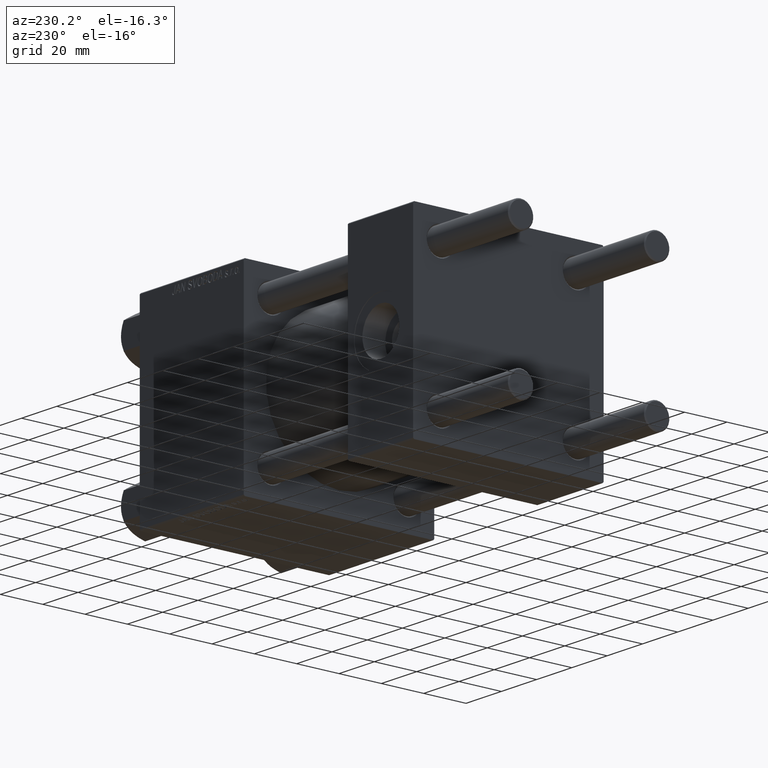
[diagram: clean part render]
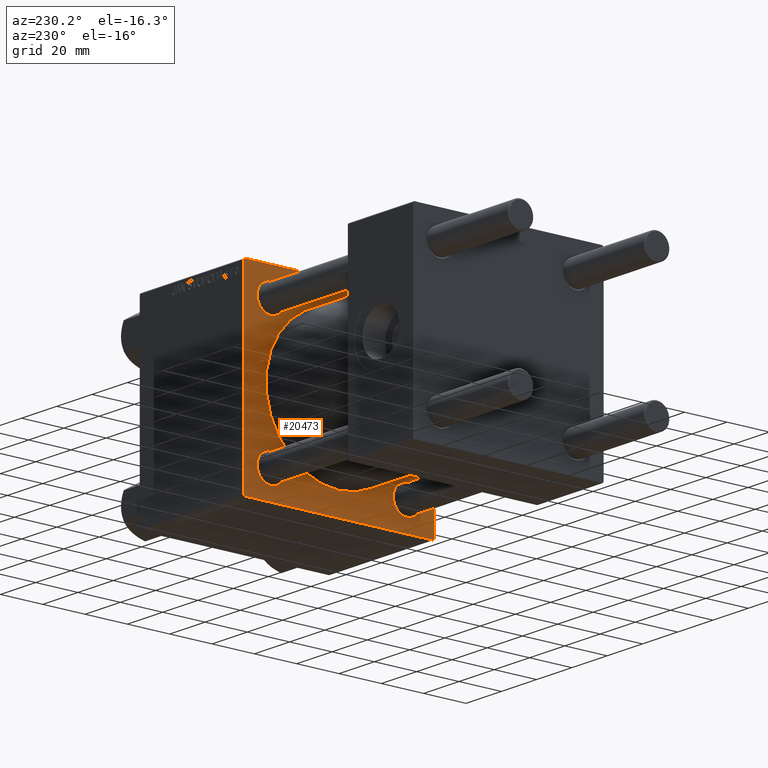
[diagram: same view with one face highlighted and labeled with its STEP entity id]
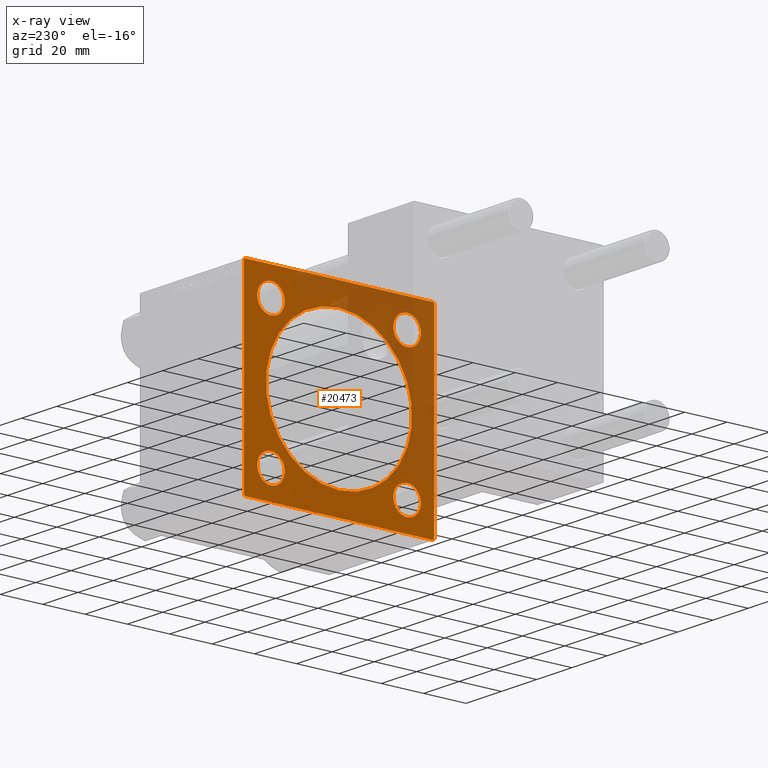
[diagram: x-ray of the same camera — body ghosted, the highlighted face saturated]
A machine part, auxiliary view. The second image highlights one B-rep face of the part: STEP entity #20473.
The next image is the same camera in x-ray: the body ghosted, the highlighted face saturated — about 38% of this face is hidden behind the body in this view.
In plain terms, the highlighted planar face has unit normal (-1, 0, 0).
Its self-contained STEP definition (entity closure, byte-faithful):
#757 = LINE ( 'NONE', #19904, #46773 ) ;
#901 = CARTESIAN_POINT ( 'NONE',  ( 96.00000000000000000, -44.74999999999997158, 44.74999999999997158 ) ) ;
#1636 = CARTESIAN_POINT ( 'NONE',  ( 96.00000000000000000, 0.000000000000000000, 0.000000000000000000 ) ) ;
#1986 = CIRCLE ( 'NONE', #2775, 6.500000000000033751 ) ;
#2065 = CARTESIAN_POINT ( 'NONE',  ( 96.00000000000000000, 32.14999999999999147, -32.15000000000000568 ) ) ;
#2303 = FACE_OUTER_BOUND ( 'NONE', #49475, .T. ) ;
#2775 = AXIS2_PLACEMENT_3D ( 'NONE', #45276, #18053, #6952 ) ;
#2990 = CARTESIAN_POINT ( 'NONE',  ( 96.00000000000000000, 0.000000000000000000, 34.49999999999999289 ) ) ;
#3129 = DIRECTION ( 'NONE',  ( 0.000000000000000000, 0.000000000000000000, 1.000000000000000000 ) ) ;
#3485 = CARTESIAN_POINT ( 'NONE',  ( 96.00000000000000000, 4.225031457058367344E-15, -34.49999999999999289 ) ) ;
#4097 = ORIENTED_EDGE ( 'NONE', *, *, #10526, .T. ) ;
#4705 = AXIS2_PLACEMENT_3D ( 'NONE', #2065, #17399, #13623 ) ;
#5627 = EDGE_CURVE ( 'NONE', #24999, #29662, #20093, .T. ) ;
#5808 = CARTESIAN_POINT ( 'NONE',  ( 96.00000000000000000, 44.75000000000000000, -44.75000000000000000 ) ) ;
#6432 = VECTOR ( 'NONE', #36189, 1000.000000000000114 ) ;
#6809 = EDGE_CURVE ( 'NONE', #30295, #20664, #8858, .T. ) ;
#6952 = DIRECTION ( 'NONE',  ( 0.000000000000000000, 0.000000000000000000, 1.000000000000000000 ) ) ;
#7526 = EDGE_CURVE ( 'NONE', #40867, #35842, #24506, .T. ) ;
#7564 = CARTESIAN_POINT ( 'NONE',  ( 96.00000000000000000, -44.49999999999994316, 44.99999999999998579 ) ) ;
#7716 = EDGE_CURVE ( 'NONE', #43352, #12743, #24226, .T. ) ;
#8032 = ORIENTED_EDGE ( 'NONE', *, *, #12027, .T. ) ;
#8149 = VERTEX_POINT ( 'NONE', #11503 ) ;
#8690 = LINE ( 'NONE', #901, #6432 ) ;
#8858 = CIRCLE ( 'NONE', #49093, 6.500000000000033751 ) ;
#8949 = VECTOR ( 'NONE', #26944, 1000.000000000000000 ) ;
#9583 = DIRECTION ( 'NONE',  ( -1.000000000000000000, 0.000000000000000000, -0.000000000000000000 ) ) ;
#10312 = DIRECTION ( 'NONE',  ( 0.000000000000000000, 0.000000000000000000, 1.000000000000000000 ) ) ;
#10315 = EDGE_CURVE ( 'NONE', #19948, #8149, #45210, .T. ) ;
#10479 = VERTEX_POINT ( 'NONE', #21256 ) ;
#10526 = EDGE_CURVE ( 'NONE', #17356, #46017, #38815, .T. ) ;
#11002 = ORIENTED_EDGE ( 'NONE', *, *, #38592, .T. ) ;
#11503 = CARTESIAN_POINT ( 'NONE',  ( 96.00000000000000000, 32.14999999999999147, 38.65000000000004121 ) ) ;
#11762 = DIRECTION ( 'NONE',  ( 0.000000000000000000, 0.7071067811865474617, -0.7071067811865474617 ) ) ;
#12027 = EDGE_CURVE ( 'NONE', #10479, #40867, #43621, .T. ) ;
#12107 = ORIENTED_EDGE ( 'NONE', *, *, #7716, .T. ) ;
#12238 = CARTESIAN_POINT ( 'NONE',  ( 96.00000000000000000, -45.00000000000000000, 44.49999999999995737 ) ) ;
#12743 = VERTEX_POINT ( 'NONE', #31924 ) ;
#12885 = EDGE_LOOP ( 'NONE', ( #4097, #11002 ) ) ;
#12907 = ORIENTED_EDGE ( 'NONE', *, *, #20309, .T. ) ;
#13090 = ORIENTED_EDGE ( 'NONE', *, *, #34263, .T. ) ;
#13379 = CARTESIAN_POINT ( 'NONE',  ( 96.00000000000000000, 0.000000000000000000, 0.000000000000000000 ) ) ;
#13492 = EDGE_CURVE ( 'NONE', #44191, #10479, #14547, .T. ) ;
#13623 = DIRECTION ( 'NONE',  ( 0.000000000000000000, 0.000000000000000000, 1.000000000000000000 ) ) ;
#13873 = FACE_BOUND ( 'NONE', #36270, .T. ) ;
#13894 = EDGE_LOOP ( 'NONE', ( #14090, #19247 ) ) ;
#14090 = ORIENTED_EDGE ( 'NONE', *, *, #5627, .T. ) ;
#14381 = CIRCLE ( 'NONE', #4705, 6.500000000000033751 ) ;
#14547 = LINE ( 'NONE', #26165, #41294 ) ;
#14719 = DIRECTION ( 'NONE',  ( 1.000000000000000000, 0.000000000000000000, 0.000000000000000000 ) ) ;
#16146 = CARTESIAN_POINT ( 'NONE',  ( 96.00000000000000000, 32.14999999999999147, 32.15000000000000568 ) ) ;
#16261 = DIRECTION ( 'NONE',  ( 0.000000000000000000, 0.000000000000000000, -1.000000000000000000 ) ) ;
#16403 = CIRCLE ( 'NONE', #22101, 6.500000000000033751 ) ;
#16871 = AXIS2_PLACEMENT_3D ( 'NONE', #1636, #23851, #24095 ) ;
#17316 = ORIENTED_EDGE ( 'NONE', *, *, #41423, .F. ) ;
#17356 = VERTEX_POINT ( 'NONE', #49427 ) ;
#17395 = FACE_BOUND ( 'NONE', #37248, .T. ) ;
#17399 = DIRECTION ( 'NONE',  ( 1.000000000000000000, 0.000000000000000000, 0.000000000000000000 ) ) ;
#17887 = VECTOR ( 'NONE', #24249, 1000.000000000000114 ) ;
#18053 = DIRECTION ( 'NONE',  ( 1.000000000000000000, 0.000000000000000000, 0.000000000000000000 ) ) ;
#18218 = ORIENTED_EDGE ( 'NONE', *, *, #35218, .T. ) ;
#19129 = DIRECTION ( 'NONE',  ( 1.000000000000000000, 0.000000000000000000, 0.000000000000000000 ) ) ;
#19247 = ORIENTED_EDGE ( 'NONE', *, *, #43513, .T. ) ;
#19904 = CARTESIAN_POINT ( 'NONE',  ( 96.00000000000000000, -44.74999999999965183, -44.75000000000027001 ) ) ;
#19948 = VERTEX_POINT ( 'NONE', #24133 ) ;
#20093 = CIRCLE ( 'NONE', #16871, 34.49999999999999289 ) ;
#20309 = EDGE_CURVE ( 'NONE', #8149, #19948, #16403, .T. ) ;
#20473 = ADVANCED_FACE ( 'NONE', ( #47890, #13873, #17395, #21971, #21474, #2303 ), #37353, .T. ) ;
#20664 = VERTEX_POINT ( 'NONE', #47327 ) ;
#21256 = CARTESIAN_POINT ( 'NONE',  ( 96.00000000000000000, 45.00000000000001421, -44.49999999999997158 ) ) ;
#21474 = FACE_BOUND ( 'NONE', #13894, .T. ) ;
#21971 = FACE_BOUND ( 'NONE', #12885, .T. ) ;
#22024 = ORIENTED_EDGE ( 'NONE', *, *, #30672, .F. ) ;
#22101 = AXIS2_PLACEMENT_3D ( 'NONE', #16146, #36094, #38452 ) ;
#22316 = CARTESIAN_POINT ( 'NONE',  ( 96.00000000000000000, 32.14999999999999147, 32.15000000000000568 ) ) ;
#22448 = DIRECTION ( 'NONE',  ( 0.000000000000000000, 0.000000000000000000, 1.000000000000000000 ) ) ;
#22474 = CARTESIAN_POINT ( 'NONE',  ( 96.00000000000000000, 44.50000000000001421, -45.00000000000000000 ) ) ;
#23637 = EDGE_CURVE ( 'NONE', #12743, #43352, #14381, .T. ) ;
#23851 = DIRECTION ( 'NONE',  ( 1.000000000000000000, 0.000000000000000000, 0.000000000000000000 ) ) ;
#24095 = DIRECTION ( 'NONE',  ( 0.000000000000000000, 0.000000000000000000, -1.000000000000000000 ) ) ;
#24133 = CARTESIAN_POINT ( 'NONE',  ( 96.00000000000000000, 32.14999999999999147, 25.64999999999997016 ) ) ;
#24226 = CIRCLE ( 'NONE', #32257, 6.500000000000033751 ) ;
#24249 = DIRECTION ( 'NONE',  ( -0.000000000000000000, -0.7071067811865474617, -0.7071067811865474617 ) ) ;
#24506 = LINE ( 'NONE', #39863, #34668 ) ;
#24993 = DIRECTION ( 'NONE',  ( -0.000000000000000000, 0.000000000000000000, 1.000000000000000000 ) ) ;
#24999 = VERTEX_POINT ( 'NONE', #2990 ) ;
#25974 = CARTESIAN_POINT ( 'NONE',  ( 96.00000000000000000, -32.14999999999997726, -32.15000000000001279 ) ) ;
#26165 = CARTESIAN_POINT ( 'NONE',  ( 96.00000000000000000, 45.00000000000001421, 45.00000000000000000 ) ) ;
#26418 = CARTESIAN_POINT ( 'NONE',  ( 96.00000000000000000, 44.74999999999998579, 44.74999999999998579 ) ) ;
#26511 = VERTEX_POINT ( 'NONE', #49266 ) ;
#26678 = EDGE_CURVE ( 'NONE', #44295, #41017, #8690, .T. ) ;
#26719 = CARTESIAN_POINT ( 'NONE',  ( 96.00000000000000000, 32.14999999999999147, -32.15000000000000568 ) ) ;
#26944 = DIRECTION ( 'NONE',  ( 0.000000000000000000, -1.000000000000000000, -1.541976423090495140E-16 ) ) ;
#28896 = DIRECTION ( 'NONE',  ( 0.000000000000000000, 7.709882115452478166E-17, -1.000000000000000000 ) ) ;
#29108 = ORIENTED_EDGE ( 'NONE', *, *, #41532, .T. ) ;
#29662 = VERTEX_POINT ( 'NONE', #3485 ) ;
#29729 = DIRECTION ( 'NONE',  ( 1.000000000000000000, 0.000000000000000000, 0.000000000000000000 ) ) ;
#29777 = CARTESIAN_POINT ( 'NONE',  ( 96.00000000000000000, -32.14999999999997726, -32.15000000000001279 ) ) ;
#30295 = VERTEX_POINT ( 'NONE', #39329 ) ;
#30506 = VERTEX_POINT ( 'NONE', #44350 ) ;
#30569 = CARTESIAN_POINT ( 'NONE',  ( 96.00000000000000000, -44.49999999999990052, -45.00000000000000000 ) ) ;
#30672 = EDGE_CURVE ( 'NONE', #26511, #41017, #45813, .T. ) ;
#31464 = VECTOR ( 'NONE', #11762, 1000.000000000000114 ) ;
#31573 = AXIS2_PLACEMENT_3D ( 'NONE', #29777, #34567, #34072 ) ;
#31924 = CARTESIAN_POINT ( 'NONE',  ( 96.00000000000000000, 32.14999999999999147, -25.64999999999997016 ) ) ;
#32016 = ORIENTED_EDGE ( 'NONE', *, *, #23637, .T. ) ;
#32158 = DIRECTION ( 'NONE',  ( 1.000000000000000000, 0.000000000000000000, 0.000000000000000000 ) ) ;
#32257 = AXIS2_PLACEMENT_3D ( 'NONE', #26719, #29729, #22448 ) ;
#32398 = ORIENTED_EDGE ( 'NONE', *, *, #6809, .T. ) ;
#32553 = VECTOR ( 'NONE', #28896, 1000.000000000000000 ) ;
#33949 = ORIENTED_EDGE ( 'NONE', *, *, #7526, .T. ) ;
#34072 = DIRECTION ( 'NONE',  ( 0.000000000000000000, 0.000000000000000000, 1.000000000000000000 ) ) ;
#34263 = EDGE_CURVE ( 'NONE', #26511, #44191, #46293, .T. ) ;
#34567 = DIRECTION ( 'NONE',  ( 1.000000000000000000, 0.000000000000000000, 0.000000000000000000 ) ) ;
#34668 = VECTOR ( 'NONE', #38876, 1000.000000000000000 ) ;
#35136 = ORIENTED_EDGE ( 'NONE', *, *, #10315, .T. ) ;
#35218 = EDGE_CURVE ( 'NONE', #35842, #30506, #757, .T. ) ;
#35542 = AXIS2_PLACEMENT_3D ( 'NONE', #22316, #14719, #3129 ) ;
#35671 = CIRCLE ( 'NONE', #48504, 6.500000000000033751 ) ;
#35842 = VERTEX_POINT ( 'NONE', #30569 ) ;
#36094 = DIRECTION ( 'NONE',  ( 1.000000000000000000, 0.000000000000000000, 0.000000000000000000 ) ) ;
#36189 = DIRECTION ( 'NONE',  ( -0.000000000000000000, 0.7071067811865474617, 0.7071067811865474617 ) ) ;
#36204 = CARTESIAN_POINT ( 'NONE',  ( 96.00000000000000000, 0.000000000000000000, 0.000000000000000000 ) ) ;
#36248 = LINE ( 'NONE', #36501, #32553 ) ;
#36270 = EDGE_LOOP ( 'NONE', ( #12907, #35136 ) ) ;
#36501 = CARTESIAN_POINT ( 'NONE',  ( 96.00000000000000000, -45.00000000000000000, 44.99999999999998579 ) ) ;
#37248 = EDGE_LOOP ( 'NONE', ( #32016, #12107 ) ) ;
#37353 = PLANE ( 'NONE',  #49411 ) ;
#38452 = DIRECTION ( 'NONE',  ( 0.000000000000000000, 0.000000000000000000, 1.000000000000000000 ) ) ;
#38592 = EDGE_CURVE ( 'NONE', #46017, #17356, #35671, .T. ) ;
#38815 = CIRCLE ( 'NONE', #31573, 6.500000000000033751 ) ;
#38876 = DIRECTION ( 'NONE',  ( 0.000000000000000000, -1.000000000000000000, 0.000000000000000000 ) ) ;
#39083 = DIRECTION ( 'NONE',  ( 0.000000000000000000, -0.7071067811865524577, 0.7071067811865426878 ) ) ;
#39329 = CARTESIAN_POINT ( 'NONE',  ( 96.00000000000000000, -32.14999999999997726, 38.65000000000004832 ) ) ;
#39863 = CARTESIAN_POINT ( 'NONE',  ( 96.00000000000000000, 45.00000000000001421, -45.00000000000000000 ) ) ;
#40867 = VERTEX_POINT ( 'NONE', #22474 ) ;
#41017 = VERTEX_POINT ( 'NONE', #7564 ) ;
#41294 = VECTOR ( 'NONE', #45303, 1000.000000000000000 ) ;
#41405 = EDGE_LOOP ( 'NONE', ( #32398, #29108 ) ) ;
#41423 = EDGE_CURVE ( 'NONE', #44295, #30506, #36248, .T. ) ;
#41487 = CIRCLE ( 'NONE', #43102, 34.49999999999999289 ) ;
#41532 = EDGE_CURVE ( 'NONE', #20664, #30295, #1986, .T. ) ;
#41573 = ORIENTED_EDGE ( 'NONE', *, *, #13492, .T. ) ;
#42802 = CARTESIAN_POINT ( 'NONE',  ( 96.00000000000000000, 45.00000000000001421, 45.00000000000000000 ) ) ;
#43102 = AXIS2_PLACEMENT_3D ( 'NONE', #36204, #32158, #16261 ) ;
#43352 = VERTEX_POINT ( 'NONE', #49037 ) ;
#43513 = EDGE_CURVE ( 'NONE', #29662, #24999, #41487, .T. ) ;
#43621 = LINE ( 'NONE', #5808, #17887 ) ;
#44191 = VERTEX_POINT ( 'NONE', #49291 ) ;
#44295 = VERTEX_POINT ( 'NONE', #12238 ) ;
#44350 = CARTESIAN_POINT ( 'NONE',  ( 96.00000000000000000, -44.99999999999999289, -44.49999999999991473 ) ) ;
#45119 = DIRECTION ( 'NONE',  ( 1.000000000000000000, 0.000000000000000000, 0.000000000000000000 ) ) ;
#45210 = CIRCLE ( 'NONE', #35542, 6.500000000000033751 ) ;
#45276 = CARTESIAN_POINT ( 'NONE',  ( 96.00000000000000000, -32.14999999999997726, 32.15000000000001279 ) ) ;
#45303 = DIRECTION ( 'NONE',  ( 0.000000000000000000, 0.000000000000000000, -1.000000000000000000 ) ) ;
#45813 = LINE ( 'NONE', #42802, #8949 ) ;
#46017 = VERTEX_POINT ( 'NONE', #48782 ) ;
#46293 = LINE ( 'NONE', #26418, #31464 ) ;
#46588 = ORIENTED_EDGE ( 'NONE', *, *, #26678, .T. ) ;
#46773 = VECTOR ( 'NONE', #39083, 1000.000000000000000 ) ;
#47327 = CARTESIAN_POINT ( 'NONE',  ( 96.00000000000000000, -32.14999999999997726, 25.64999999999997726 ) ) ;
#47890 = FACE_BOUND ( 'NONE', #41405, .T. ) ;
#48504 = AXIS2_PLACEMENT_3D ( 'NONE', #25974, #45119, #49610 ) ;
#48782 = CARTESIAN_POINT ( 'NONE',  ( 96.00000000000000000, -32.14999999999997726, -38.65000000000004832 ) ) ;
#49037 = CARTESIAN_POINT ( 'NONE',  ( 96.00000000000000000, 32.14999999999999147, -38.65000000000004121 ) ) ;
#49093 = AXIS2_PLACEMENT_3D ( 'NONE', #49839, #19129, #10312 ) ;
#49266 = CARTESIAN_POINT ( 'NONE',  ( 96.00000000000000000, 44.49999999999998579, 45.00000000000000000 ) ) ;
#49291 = CARTESIAN_POINT ( 'NONE',  ( 96.00000000000000000, 45.00000000000001421, 44.49999999999997158 ) ) ;
#49411 = AXIS2_PLACEMENT_3D ( 'NONE', #13379, #9583, #24993 ) ;
#49427 = CARTESIAN_POINT ( 'NONE',  ( 96.00000000000000000, -32.14999999999997726, -25.64999999999997726 ) ) ;
#49475 = EDGE_LOOP ( 'NONE', ( #33949, #18218, #17316, #46588, #22024, #13090, #41573, #8032 ) ) ;
#49610 = DIRECTION ( 'NONE',  ( 0.000000000000000000, 0.000000000000000000, 1.000000000000000000 ) ) ;
#49839 = CARTESIAN_POINT ( 'NONE',  ( 96.00000000000000000, -32.14999999999997726, 32.15000000000001279 ) ) ;